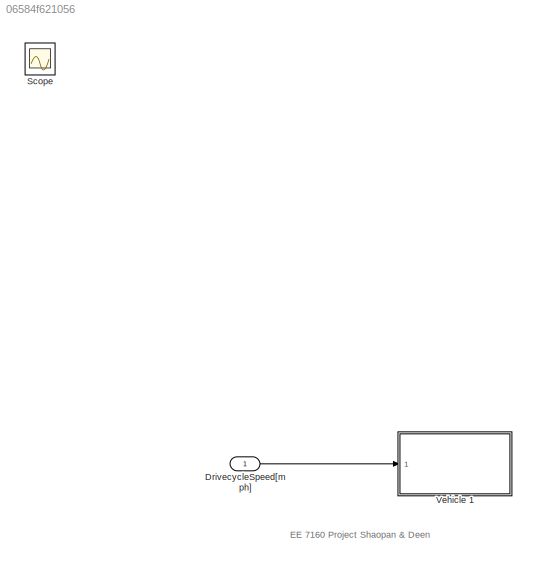
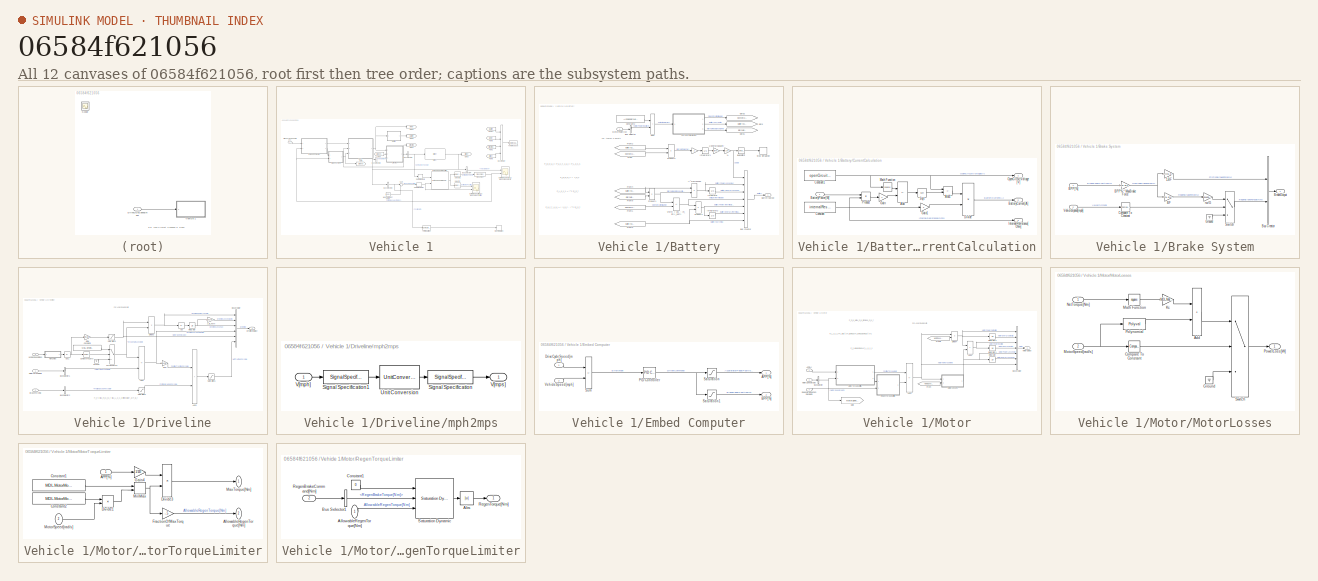
[diagram: thumbnail index - all 12 canvases of the model, root first then tree order]
MODEL slx_06584f621056
KIND model
CONFIG AbsTol = auto
CONFIG EnableMultiTasking = on
CONFIG FixedStep = .1
CONFIG MaxStep = auto
CONFIG MinStep = auto
CONFIG PostLoadFcn = addpath('ImagesBEV')\n\nBEVDir = pwd;\n\ncd ..\;\nSimulinkDir = pwd;\naddpath(SimulinkDir);\n\ncd(BEVDir);
CONFIG RelTol = 1e-3
CONFIG SampleTimeConstraint = Unconstrained
CONFIG Solver = ode4
CONFIG SolverName = ode4
CONFIG StartTime = 0.0
CONFIG StopFcn = MotorNetTorque = results.Motor.MotorNetTorque_Nm_;\nSOC = results.Battery.SOC___;\nBatteryPowerAtTerminals = results.Battery.BatteryPowerAtTerminals_W_;\nVehicleSpeed = results.Glider.Velocity_mph_;\n\n% figure\n% scatter(VehicleSpeed.get.Data(:),MotorNetTorque.get.Data(:),'.')\n% grid on\n% box on\n% title('Motor Torque vs. Vehicle Speed')\n% xlabel('Vehicle Speed, V (mph)')\n% ylabel('Motor Torque, Tm (Nm)...<+404ch>
CONFIG StopTime = TimeUS06
WORKSPACE source: mxarray member
WORKSPACE AccessoryLoad = 600
WORKSPACE C_ref = 600
WORKSPACE DrCycles: object (value not decoded)
WORKSPACE K = 1.04716227018
WORKSPACE Kc_ref = 0.12
WORKSPACE Ki_ref = 0.01
WORKSPACE Kw_ref = 1.2e-05
WORKSPACE MDL: object (value not decoded)
WORKSPACE R = 5
WORKSPACE T_max = 500
WORKSPACE T_ref = 300
WORKSPACE TimeHWFET = 765
WORKSPACE TimeUDDS = 1372
WORKSPACE TimeUS06 = 596
WORKSPACE Ts = 0.1
WORKSPACE aeroDragCoeff = 0.38
WORKSPACE airDensity = 1.23
WORKSPACE energyCapacity = 12.6
WORKSPACE frontArea = 2.1
WORKSPACE gravity = 9.81
WORKSPACE inclinationAngle = 0
WORKSPACE inertialMassVeh = 2392
WORKSPACE initialSOC = 0.95
WORKSPACE internalResistance = 0.1
WORKSPACE massVeh = 2300
WORKSPACE openCircuitVoltage = 340
WORKSPACE rollingResistCoeff = 0.01
WORKSPACE w_max = 524
WORKSPACE w_ref = 834
WORKSPACE wheelRadius = 0.34
BLOCK [Inport] DrivecycleSpeed[mph]
BLOCK [Scope] Scope
  Floating = off
  IOType = viewer
  NumInputPorts = 1
  Ports = []
  ScopeSpecificationString = Simulink.scopes.TimeScopeBlockCfg('CurrentConfiguration', extmgr.ConfigurationSet(extmgr.Configuration('Core','General UI',true),extmgr.Configuration('Core','Source UI',true),extmgr.Configuration('Sources','WiredSimulink',true),extmgr.Configuration('Visuals','Time Domain',true,'SerializedDisplays',{struct('MinYLimReal','-10.07407','MaxYLimReal','90.44538','YLabelReal','','MinYLimMag','0.00000','Ma...<+1372ch>
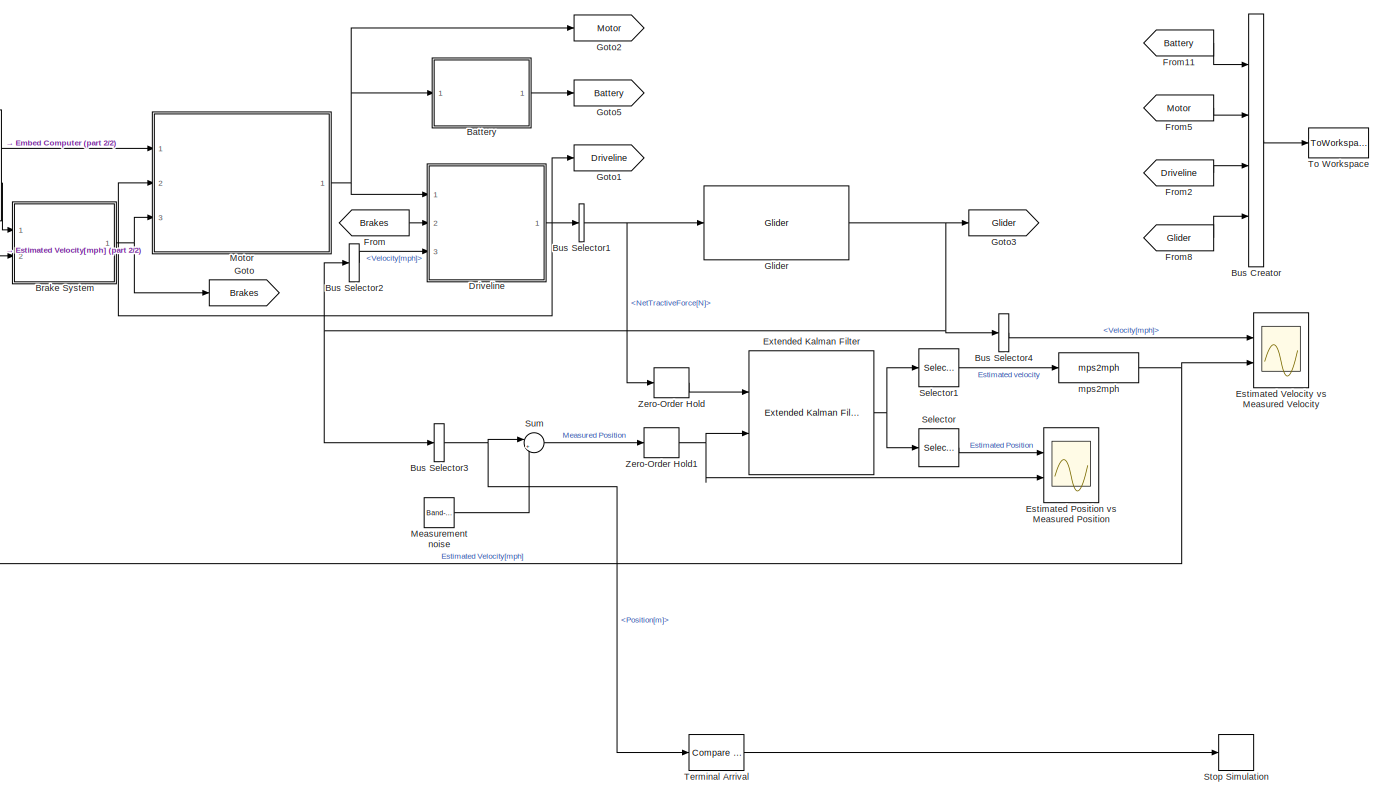
[diagram: Vehicle 1 - part 1/2, most of the canvas]
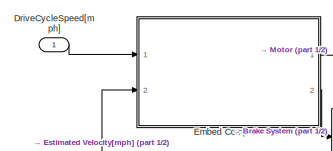
[diagram: Vehicle 1 - part 2/2, top left region]
BLOCK [SubSystem] Vehicle 1
  Ports = [1]
  RequestExecContextInheritance = off
BLOCK [Reference] Vehicle 1/ Measurement noise  REF=simulink/Sources/Band-Limited
White Noise
  Ports = [0, 1]
  SourceBlock = simulink/Sources/Band-Limited\nWhite Noise
  SourceProductBaseCode = SL
  SourceType = Band-Limited White Noise.
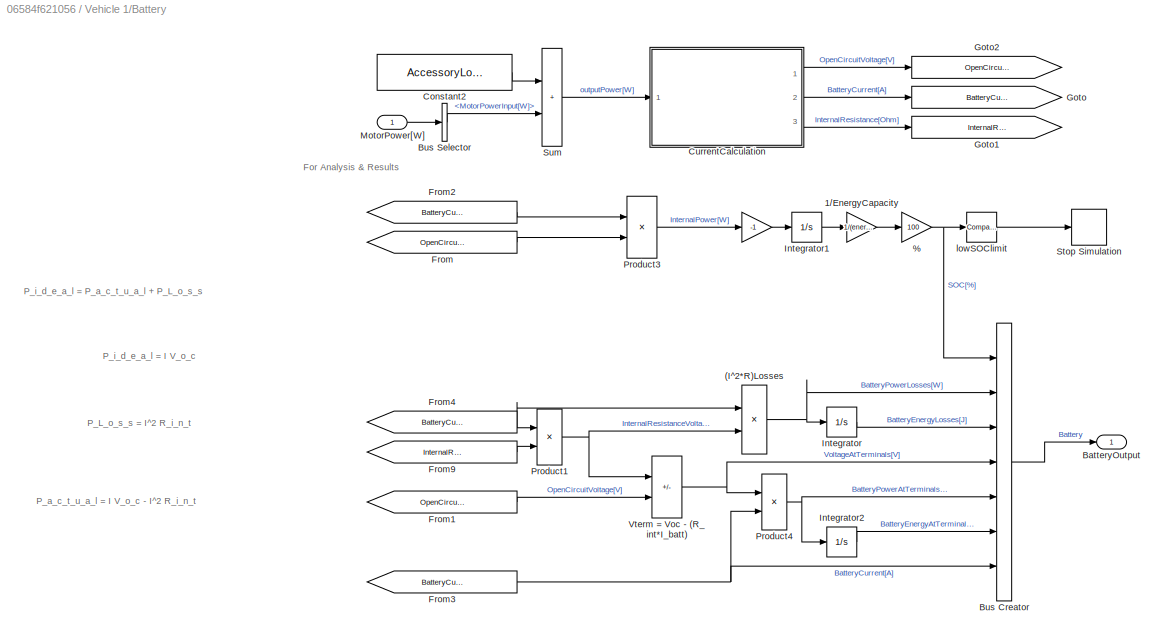
BLOCK [SubSystem] Vehicle 1/Battery
  Ports = [1, 1]
  RequestExecContextInheritance = off
BLOCK [Gain] Vehicle 1/Battery/ 
  Gain = -1
BLOCK [Gain] Vehicle 1/Battery/%
  Gain = 100
BLOCK [Product] Vehicle 1/Battery/(I^2*R)Losses
  NameLocation = top
  Ports = [2, 1]
  RndMeth = Zero
BLOCK [Gain] Vehicle 1/Battery/1//EnergyCapacity
  Gain = 1/(energyCapacity*3600*1000)
BLOCK [Outport] Vehicle 1/Battery/BatteryOutput
  VectorParamsAs1DForOutWhenUnconnected = off
BLOCK [BusCreator] Vehicle 1/Battery/Bus Creator
  DisplayOption = bar
  InheritFromInputs = on
  Inputs = 7
  Ports = [7, 1]
BLOCK [BusSelector] Vehicle 1/Battery/Bus Selector
  OutputSignals = MotorPowerInput[W]
  Ports = [1, 1]
BLOCK [Constant] Vehicle 1/Battery/Constant2
  Value = AccessoryLoad
BLOCK [SubSystem] Vehicle 1/Battery/CurrentCalculation
  Ports = [1, 3]
  RequestExecContextInheritance = off
BLOCK [Sum] Vehicle 1/Battery/CurrentCalculation/Add
  IconShape = rectangular
  Inputs = +-
  Ports = [2, 1]
BLOCK [Sum] Vehicle 1/Battery/CurrentCalculation/Add1
  IconShape = rectangular
  Inputs = +-
  Ports = [2, 1]
BLOCK [Outport] Vehicle 1/Battery/CurrentCalculation/BatteryCurrent[A]
  Port = 2
  VectorParamsAs1DForOutWhenUnconnected = off
BLOCK [Inport] Vehicle 1/Battery/CurrentCalculation/BatteryPower[W]
BLOCK [Constant] Vehicle 1/Battery/CurrentCalculation/Constant
  Value = internalResistance
BLOCK [Constant] Vehicle 1/Battery/CurrentCalculation/Constant1
  Value = openCircuitVoltage
BLOCK [Product] Vehicle 1/Battery/CurrentCalculation/Divide
  Inputs = */
  Ports = [2, 1]
BLOCK [Gain] Vehicle 1/Battery/CurrentCalculation/Gain
  Gain = 4
BLOCK [Gain] Vehicle 1/Battery/CurrentCalculation/Gain1
  Gain = 2
BLOCK [Outport] Vehicle 1/Battery/CurrentCalculation/InternalResistance[Ohm]
  Port = 3
  VectorParamsAs1DForOutWhenUnconnected = off
BLOCK [Math] Vehicle 1/Battery/CurrentCalculation/Math Function
  Operator = square
  Ports = [1, 1]
  SignedPower = on
BLOCK [Outport] Vehicle 1/Battery/CurrentCalculation/OpenCircuitVoltage[V]
  VectorParamsAs1DForOutWhenUnconnected = off
BLOCK [Product] Vehicle 1/Battery/CurrentCalculation/Product
  Ports = [2, 1]
  RndMeth = Zero
BLOCK [Sqrt] Vehicle 1/Battery/CurrentCalculation/Sqrt
BLOCK [From] Vehicle 1/Battery/From
  GotoTag = OpenCircuitVoltage_V
BLOCK [From] Vehicle 1/Battery/From1
  GotoTag = OpenCircuitVoltage_V
BLOCK [From] Vehicle 1/Battery/From2
  GotoTag = BatteryCurrent_A
BLOCK [From] Vehicle 1/Battery/From3
  GotoTag = BatteryCurrent_A
BLOCK [From] Vehicle 1/Battery/From4
  GotoTag = BatteryCurrent_A
BLOCK [From] Vehicle 1/Battery/From9
  GotoTag = InternalResistance_Ohm
BLOCK [Goto] Vehicle 1/Battery/Goto
  GotoTag = BatteryCurrent_A
BLOCK [Goto] Vehicle 1/Battery/Goto1
  GotoTag = InternalResistance_Ohm
BLOCK [Goto] Vehicle 1/Battery/Goto2
  GotoTag = OpenCircuitVoltage_V
BLOCK [Integrator] Vehicle 1/Battery/Integrator
  Ports = [1, 1]
  ZeroCross = off
BLOCK [Integrator] Vehicle 1/Battery/Integrator1
  InitialCondition = energyCapacity*3600*1000*initialSOC
  Ports = [1, 1]
  ZeroCross = off
BLOCK [Integrator] Vehicle 1/Battery/Integrator2
  Ports = [1, 1]
BLOCK [Inport] Vehicle 1/Battery/MotorPower[W]
BLOCK [Product] Vehicle 1/Battery/Product1
  Ports = [2, 1]
  RndMeth = Zero
BLOCK [Product] Vehicle 1/Battery/Product3
  Ports = [2, 1]
  RndMeth = Zero
BLOCK [Product] Vehicle 1/Battery/Product4
  Ports = [2, 1]
  RndMeth = Zero
BLOCK [Stop] Vehicle 1/Battery/Stop Simulation
BLOCK [Sum] Vehicle 1/Battery/Sum
  IconShape = rectangular
  Ports = [2, 1]
BLOCK [Sum] Vehicle 1/Battery/Vterm = Voc - (R_int*I_batt)
  IconShape = rectangular
  Inputs = -+
  Ports = [2, 1]
BLOCK [Reference] Vehicle 1/Battery/lowSOClimit  REF=simulink/Logic and Bit
Operations/Compare
To Constant
  Ports = [1, 1]
  SourceBlock = simulink/Logic and Bit\nOperations/Compare\nTo Constant
  SourceProductBaseCode = SL
  SourceType = Compare To Constant
BLOCK [SubSystem] Vehicle 1/Brake System
  Ports = [2, 1]
  RequestExecContextInheritance = off
BLOCK [Gain] Vehicle 1/Brake System/1-BF
  Gain = 1-MDL.BrakeSys.RegenFraction
BLOCK [Gain] Vehicle 1/Brake System/BF
  Gain = MDL.BrakeSys.RegenFraction
BLOCK [Gain] Vehicle 1/Brake System/BPP% * MaxBrakeForce
  Gain = MDL.BrakeSys.MaxBrakeForce/100
BLOCK [Inport] Vehicle 1/Brake System/BPP[%]
BLOCK [Outport] Vehicle 1/Brake System/BrakeOutput
  VectorParamsAs1DForOutWhenUnconnected = off
BLOCK [BusCreator] Vehicle 1/Brake System/Bus Creator
  DisplayOption = bar
  InheritFromInputs = on
  Inputs = 2
  Ports = [2, 1]
BLOCK [Reference] Vehicle 1/Brake System/Compare To Constant  REF=simulink/Logic and Bit
Operations/Compare
To Constant
  Ports = [1, 1]
  SourceBlock = simulink/Logic and Bit\nOperations/Compare\nTo Constant
  SourceProductBaseCode = SL
  SourceType = Compare To Constant
BLOCK [Ground] Vehicle 1/Brake System/Ground
BLOCK [Switch] Vehicle 1/Brake System/Switch
  Criteria = u2 ~= 0
  InputSameDT = off
  SaturateOnIntegerOverflow = off
BLOCK [Inport] Vehicle 1/Brake System/VehicleSpeed[mph]
  Port = 2
BLOCK [Gain] Vehicle 1/Brake System/rw//G
  Gain = wheelRadius/MDL.DrivelineModel.G
BLOCK [BusCreator] Vehicle 1/Bus Creator
  DisplayOption = bar
  InheritFromInputs = on
  Inputs = 4
  Ports = [4, 1]
BLOCK [BusSelector] Vehicle 1/Bus Selector1
  OutputSignals = NetTractiveForce[N]
  Ports = [1, 1]
BLOCK [BusSelector] Vehicle 1/Bus Selector2
  OutputSignals = Velocity[mph]
  Ports = [1, 1]
BLOCK [BusSelector] Vehicle 1/Bus Selector3
  OutputSignals = Position[m]
  Ports = [1, 1]
BLOCK [BusSelector] Vehicle 1/Bus Selector4
  OutputSignals = Velocity[mph]
  Ports = [1, 1]
BLOCK [Inport] Vehicle 1/DriveCycleSpeed[mph]
BLOCK [SubSystem] Vehicle 1/Driveline
  Ports = [3, 1]
  RequestExecContextInheritance = off
BLOCK [Abs] Vehicle 1/Driveline/Abs
  SaturateOnIntegerOverflow = off
  ZeroCross = off
BLOCK [Abs] Vehicle 1/Driveline/Abs1
  SaturateOnIntegerOverflow = off
  ZeroCross = off
BLOCK [Sum] Vehicle 1/Driveline/Add1
  IconShape = rectangular
  Inputs = -+
  Ports = [2, 1]
BLOCK [Sum] Vehicle 1/Driveline/Add3
  IconShape = rectangular
  Ports = [2, 1]
BLOCK [Inport] Vehicle 1/Driveline/BrakeForce[N]
  Port = 2
BLOCK [BusCreator] Vehicle 1/Driveline/Bus Creator
  DisplayOption = bar
  InheritFromInputs = on
  Inputs = 6
  Ports = [6, 1]
BLOCK [BusSelector] Vehicle 1/Driveline/Bus Selector1
  OutputSignals = MotorNetTorque[Nm]
  Ports = [1, 1]
BLOCK [BusSelector] Vehicle 1/Driveline/Bus Selector2
  OutputSignals = FrictionBrakeForce[N]
  Ports = [1, 1]
BLOCK [Reference] Vehicle 1/Driveline/Compare To Zero  REF=simulink/Logic and Bit
Operations/Compare
To Zero
  Ports = [1, 1]
  SourceBlock = simulink/Logic and Bit\nOperations/Compare\nTo Zero
  SourceProductBaseCode = SL
  SourceType = Compare To Zero
BLOCK [Constant] Vehicle 1/Driveline/Constant1
  Value = MDL.DrivelineModel.Spinloss
BLOCK [Product] Vehicle 1/Driveline/Divide3
  Inputs = **
  Ports = [2, 1]
BLOCK [Outport] Vehicle 1/Driveline/DrivelineOutput
  VectorParamsAs1DForOutWhenUnconnected = off
BLOCK [Switch] Vehicle 1/Driveline/ForNonZeroV
  Criteria = u2 ~= 0
  InputSameDT = off
  SaturateOnIntegerOverflow = off
  ZeroCross = off
BLOCK [Gain] Vehicle 1/Driveline/G//Rw
  Gain = MDL.DrivelineModel.G/wheelRadius
BLOCK [Gain] Vehicle 1/Driveline/G//rw
  Gain = MDL.DrivelineModel.G/wheelRadius
BLOCK [Ground] Vehicle 1/Driveline/Ground
BLOCK [Integrator] Vehicle 1/Driveline/Integrator
  Ports = [1, 1]
  ZeroCross = off
BLOCK [Gain] Vehicle 1/Driveline/J_to_kWh
  Gain = .000278/1000
BLOCK [Inport] Vehicle 1/Driveline/MotorTorque[Nm]
BLOCK [Saturate] Vehicle 1/Driveline/Saturation1
  LowerLimit = -10000
  UpperLimit = 5000
  ZeroCross = off
BLOCK [Saturate] Vehicle 1/Driveline/Saturation2
  LowerLimit = -10000
  UpperLimit = 0
  ZeroCross = off
BLOCK [Saturate] Vehicle 1/Driveline/Saturation3
  LowerLimit = 0.00001
  UpperLimit = inf
  ZeroCross = off
BLOCK [Inport] Vehicle 1/Driveline/VehicleSpeed[mph]
  Port = 3
BLOCK [SubSystem] Vehicle 1/Driveline/mph2mps
  Ports = [1, 1]
  RequestExecContextInheritance = off
BLOCK [SignalSpecification] Vehicle 1/Driveline/mph2mps/Signal Specification
  Unit = m/s
BLOCK [SignalSpecification] Vehicle 1/Driveline/mph2mps/Signal Specification1
  Unit = mile/hr
BLOCK [UnitConversion] Vehicle 1/Driveline/mph2mps/Unit Conversion
BLOCK [Inport] Vehicle 1/Driveline/mph2mps/V[mph]
BLOCK [Outport] Vehicle 1/Driveline/mph2mps/V[mps]
  VectorParamsAs1DForOutWhenUnconnected = off
BLOCK [SubSystem] Vehicle 1/Embed Computer
  AncestorBlock = Driver_Glider_Library/Driver
  Ports = [2, 2]
  RequestExecContextInheritance = off
BLOCK [Outport] Vehicle 1/Embed Computer/APP[%]
  VectorParamsAs1DForOutWhenUnconnected = off
BLOCK [Outport] Vehicle 1/Embed Computer/BPP[%]
  Port = 2
  VectorParamsAs1DForOutWhenUnconnected = off
BLOCK [Inport] Vehicle 1/Embed Computer/DriveCycleSpeed[mph]
BLOCK [Reference] Vehicle 1/Embed Computer/PID Controller  REF=simulink/Continuous/PID Controller
  Ports = [1, 1]
  SourceBlock = simulink/Continuous/PID Controller
  SourceProductBaseCode = SL
  SourceType = PID 1dof
BLOCK [Saturate] Vehicle 1/Embed Computer/Saturation
  LowerLimit = 0
  UpperLimit = 100
  ZeroCross = off
BLOCK [Saturate] Vehicle 1/Embed Computer/Saturation1
  LowerLimit = -100
  UpperLimit = 0
  ZeroCross = off
BLOCK [Sum] Vehicle 1/Embed Computer/Sum
  IconShape = rectangular
  Inputs = +-
  Ports = [2, 1]
BLOCK [Inport] Vehicle 1/Embed Computer/VehicleSpeed[mph]
  Port = 2
BLOCK [Scope] Vehicle 1/Estimated Position vs Measured Position
  Floating = off
  NumInputPorts = 2
  Ports = [2]
  ScopeSpecificationString = Simulink.scopes.TimeScopeBlockCfg('CurrentConfiguration', extmgr.ConfigurationSet(extmgr.Configuration('Core','General UI',true,'FigureColor',[0 0 0]),extmgr.Configuration('Core','Source UI',true),extmgr.Configuration('Sources','WiredSimulink',true,'DataLoggingVariableName','ScopeData1'),extmgr.Configuration('Visuals','Time Domain',true,'SerializedDisplays',{struct('MinYLimReal','-1605.65993','Max...<+1684ch>
BLOCK [Scope] Vehicle 1/Estimated Velocity vs Measured Velocity
  Floating = off
  NumInputPorts = 2
  Ports = [2]
  ScopeSpecificationString = Simulink.scopes.TimeScopeBlockCfg('CurrentConfiguration', extmgr.ConfigurationSet(extmgr.Configuration('Core','General UI',true,'FigureColor',[0 0 0]),extmgr.Configuration('Core','Source UI',true),extmgr.Configuration('Sources','WiredSimulink',true,'DataLoggingVariableName','ScopeData3'),extmgr.Configuration('Visuals','Time Domain',true,'SerializedDisplays',{struct('MinYLimReal','-100','MaxYLimRea...<+1699ch>
BLOCK [Reference] Vehicle 1/Extended Kalman Filter  REF=sharedTrackingLibrary/Extended Kalman Filter
  Ports = [2, 1]
  SourceBlock = sharedTrackingLibrary/Extended Kalman Filter
  SourceProductBaseCode = CT,DR,TF,ID,NV,AR,RO,VE
  SourceType = Extended Kalman Filter
BLOCK [From] Vehicle 1/From
  GotoTag = Brakes
BLOCK [From] Vehicle 1/From11
  GotoTag = Battery
BLOCK [From] Vehicle 1/From2
  GotoTag = Driveline
BLOCK [From] Vehicle 1/From5
  GotoTag = Motor
BLOCK [From] Vehicle 1/From8
  GotoTag = Glider
BLOCK [Reference] Vehicle 1/Glider  REF=Driver_Glider_Library/Glider
  Ports = [1, 1]
  SourceBlock = Driver_Glider_Library/Glider
BLOCK [Goto] Vehicle 1/Goto
  GotoTag = Brakes
BLOCK [Goto] Vehicle 1/Goto1
  GotoTag = Driveline
BLOCK [Goto] Vehicle 1/Goto2
  GotoTag = Motor
BLOCK [Goto] Vehicle 1/Goto3
  GotoTag = Glider
BLOCK [Goto] Vehicle 1/Goto5
  GotoTag = Battery
BLOCK [SubSystem] Vehicle 1/Motor
  Ports = [3, 1]
  RequestExecContextInheritance = off
BLOCK [Inport] Vehicle 1/Motor/APP[%]
BLOCK [Sum] Vehicle 1/Motor/Add2
  IconShape = rectangular
  Inputs = +-
  Ports = [2, 1]
BLOCK [Sum] Vehicle 1/Motor/Add3
  IconShape = rectangular
  Ports = [2, 1]
BLOCK [BusCreator] Vehicle 1/Motor/Bus Creator
  DisplayOption = bar
  InheritFromInputs = on
  Inputs = 7
  Ports = [7, 1]
BLOCK [BusSelector] Vehicle 1/Motor/Bus Selector
  OutputSignals = MotorSpeed[rad/s]
  Ports = [1, 1]
BLOCK [Product] Vehicle 1/Motor/Divide4
  Inputs = **
  Ports = [2, 1]
BLOCK [From] Vehicle 1/Motor/From
  GotoTag = MotorSpeed_radps
BLOCK [From] Vehicle 1/Motor/From1
  GotoTag = MotorSpeed_radps
BLOCK [Goto] Vehicle 1/Motor/Goto
  GotoTag = MotorSpeed_radps
BLOCK [Integrator] Vehicle 1/Motor/Integrator
  Ports = [1, 1]
  ZeroCross = off
BLOCK [Integrator] Vehicle 1/Motor/Integrator1
  Ports = [1, 1]
  ZeroCross = off
BLOCK [Integrator] Vehicle 1/Motor/Integrator2
  Ports = [1, 1]
  ZeroCross = off
BLOCK [SubSystem] Vehicle 1/Motor/MotorLosses
  Ports = [2, 1]
  RequestExecContextInheritance = off
BLOCK [Sum] Vehicle 1/Motor/MotorLosses/Add
  IconShape = rectangular
  Ports = [2, 1]
BLOCK [Reference] Vehicle 1/Motor/MotorLosses/Compare To Constant  REF=simulink/Logic and Bit
Operations/Compare
To Constant
  Ports = [1, 1]
  SourceBlock = simulink/Logic and Bit\nOperations/Compare\nTo Constant
  SourceProductBaseCode = SL
  SourceType = Compare To Constant
BLOCK [Ground] Vehicle 1/Motor/MotorLosses/Ground
BLOCK [Gain] Vehicle 1/Motor/MotorLosses/Kc
  Gain = MDL.MotorModel.kc
BLOCK [Math] Vehicle 1/Motor/MotorLosses/Math Function
  Operator = square
  Ports = [1, 1]
  SignedPower = on
BLOCK [Inport] Vehicle 1/Motor/MotorLosses/MotorSpeed[rad//s]
  Port = 2
BLOCK [Inport] Vehicle 1/Motor/MotorLosses/NetTorque[Nm]
BLOCK [Polyval] Vehicle 1/Motor/MotorLosses/Polynomial
  Coefs = [MDL.MotorModel.kw , 0 ,MDL.MotorModel.ki, MDL.MotorModel.C]
BLOCK [Outport] Vehicle 1/Motor/MotorLosses/PowerLoss[W]
  VectorParamsAs1DForOutWhenUnconnected = off
BLOCK [Switch] Vehicle 1/Motor/MotorLosses/Switch
  Criteria = u2 ~= 0
  InputSameDT = off
  SaturateOnIntegerOverflow = off
  ZeroCross = off
BLOCK [Outport] Vehicle 1/Motor/MotorOutput
  VectorParamsAs1DForOutWhenUnconnected = off
BLOCK [Inport] Vehicle 1/Motor/MotorSpeed[rad//s]
  Port = 2
BLOCK [SubSystem] Vehicle 1/Motor/MotorTorqueLimiter
  Ports = [2, 2]
  RequestExecContextInheritance = off
BLOCK [Inport] Vehicle 1/Motor/MotorTorqueLimiter/APP[%]
BLOCK [Outport] Vehicle 1/Motor/MotorTorqueLimiter/AllowableRegenTorque[Nm]
  Port = 2
  VectorParamsAs1DForOutWhenUnconnected = off
BLOCK [Constant] Vehicle 1/Motor/MotorTorqueLimiter/Constant1
  Value = MDL.MotorModel.MaxTrqOut
BLOCK [Constant] Vehicle 1/Motor/MotorTorqueLimiter/Constant2
  Value = MDL.MotorModel.MaxPwrOut
BLOCK [Product] Vehicle 1/Motor/MotorTorqueLimiter/Divide1
  Inputs = */
  Ports = [2, 1]
BLOCK [Product] Vehicle 1/Motor/MotorTorqueLimiter/Divide3
  Inputs = **
  Ports = [2, 1]
BLOCK [Gain] Vehicle 1/Motor/MotorTorqueLimiter/FractionOfMaxTorque
  Gain = -.5
BLOCK [Gain] Vehicle 1/Motor/MotorTorqueLimiter/Gain4
  Gain = 1/100
BLOCK [Outport] Vehicle 1/Motor/MotorTorqueLimiter/MaxTorque[Nm]
  VectorParamsAs1DForOutWhenUnconnected = off
BLOCK [MinMax] Vehicle 1/Motor/MotorTorqueLimiter/MinMax
  Inputs = 2
  Ports = [2, 1]
BLOCK [Inport] Vehicle 1/Motor/MotorTorqueLimiter/MotorSpeed[rad//s]
  Port = 2
BLOCK [Inport] Vehicle 1/Motor/RegenBrakingCommand[Nm]
  Port = 3
BLOCK [SubSystem] Vehicle 1/Motor/RegenTorqueLimiter
  Ports = [2, 1]
  RequestExecContextInheritance = off
BLOCK [Abs] Vehicle 1/Motor/RegenTorqueLimiter/Abs
  SaturateOnIntegerOverflow = off
BLOCK [Inport] Vehicle 1/Motor/RegenTorqueLimiter/AllowableRegenTorque[Nm]
BLOCK [BusSelector] Vehicle 1/Motor/RegenTorqueLimiter/Bus Selector1
  OutputSignals = RegenBrakeTorque[Nm]
  Ports = [1, 1]
BLOCK [Constant] Vehicle 1/Motor/RegenTorqueLimiter/Constant1
  Value = 0
BLOCK [Inport] Vehicle 1/Motor/RegenTorqueLimiter/RegenBrakeCommand[Nm]
  Port = 2
BLOCK [Outport] Vehicle 1/Motor/RegenTorqueLimiter/RegenTorque[Nm]
  VectorParamsAs1DForOutWhenUnconnected = off
BLOCK [Reference] Vehicle 1/Motor/RegenTorqueLimiter/Saturation Dynamic  REF=simulink/Discontinuities/Saturation
Dynamic
  Ports = [3, 1]
  SourceBlock = simulink/Discontinuities/Saturation\nDynamic
  SourceProductBaseCode = SL
  SourceType = Saturation Dynamic
BLOCK [Selector] Vehicle 1/Selector
  IndexOptions = Index vector (dialog)
  Indices = 1
  InputPortWidth = 2
  OutputSizes = 1
  Ports = [1, 1]
BLOCK [Selector] Vehicle 1/Selector1
  IndexOptions = Index vector (dialog)
  Indices = 2
  InputPortWidth = 2
  OutputSizes = 1
  Ports = [1, 1]
BLOCK [Stop] Vehicle 1/Stop Simulation
  Commented = on
BLOCK [Sum] Vehicle 1/Sum
  Inputs = |++
  Ports = [2, 1]
BLOCK [Reference] Vehicle 1/Terminal Arrival  REF=simulink/Logic and Bit
Operations/Compare
To Constant
  Commented = on
  Ports = [1, 1]
  SourceBlock = simulink/Logic and Bit\nOperations/Compare\nTo Constant
  SourceProductBaseCode = SL
  SourceType = Compare To Constant
BLOCK [ToWorkspace] Vehicle 1/To Workspace
  FixptAsFi = on
  MaxDataPoints = inf
  Ports = [1]
  SampleTime = -1
  Save2DSignal = 2-D array (concatenate along first dimension)
  SaveFormat = Timeseries
  VariableName = results
BLOCK [ZeroOrderHold] Vehicle 1/Zero-Order Hold
  SampleTime = Ts
BLOCK [ZeroOrderHold] Vehicle 1/Zero-Order Hold1
  SampleTime = Ts
BLOCK [Reference] Vehicle 1/mps2mph  REF=Driver_Glider_Library/Glider/mps2mph
  Ports = [1, 1]
  SourceBlock = Driver_Glider_Library/Glider/mps2mph
  SourceType = SubSystem
ANNOTATION (root): EE 7160 Project Shaopan & Deen
ANNOTATION Vehicle 1/Battery: P_L_o_s_s = I^2 R_i_n_t
ANNOTATION Vehicle 1/Battery: For Analysis & Results
ANNOTATION Vehicle 1/Battery: P_a_c_t_u_a_l = I V_o_c - I^2 R_i_n_t
ANNOTATION Vehicle 1/Battery: P_i_d_e_a_l = I V_o_c
ANNOTATION Vehicle 1/Battery: P_i_d_e_a_l = P_a_c_t_u_a_l + P_L_o_s_s
ANNOTATION Vehicle 1/Driveline: F_t_r = (\tau_m_o_t_o_r - \tau_L_o_s_s) \times G \div r_w - F_B_r
ANNOTATION Vehicle 1/Driveline: For Analysis & Results
ANNOTATION Vehicle 1/Motor: For Analysis & Results
ANNOTATION Vehicle 1/Motor: P_L_o_s_s = k_c \tau ^2 + k_i \omega + k_\omega \omega ^3 + C
ANNOTATION Vehicle 1/Motor: P_i_n = \tau \omega + P_L_o_s_s
ANNOTATION Vehicle 1/Motor: P_m_o_t = \tau_m_o_t \omega_m_o_t
LINE DrivecycleSpeed[mph]:1 -> Vehicle 1:1
LINE Vehicle 1/ Measurement noise:1 -> Vehicle 1/Sum:2
LINE Vehicle 1/Battery/ :1 -> Vehicle 1/Battery/Integrator1:1
NET Vehicle 1/Battery/%:1 -> Vehicle 1/Battery/Bus Creator:1, Vehicle 1/Battery/lowSOClimit:1
NET Vehicle 1/Battery/(I^2*R)Losses:1 -> Vehicle 1/Battery/Bus Creator:2, Vehicle 1/Battery/Integrator:1
LINE Vehicle 1/Battery/1//EnergyCapacity:1 -> Vehicle 1/Battery/%:1
LINE Vehicle 1/Battery/Bus Creator:1 -> Vehicle 1/Battery/BatteryOutput:1
LINE Vehicle 1/Battery/Bus Selector:1 -> Vehicle 1/Battery/Sum:2
LINE Vehicle 1/Battery/Constant2:1 -> Vehicle 1/Battery/Sum:1
LINE Vehicle 1/Battery/CurrentCalculation/Add1:1 -> Vehicle 1/Battery/CurrentCalculation/Divide:1
LINE Vehicle 1/Battery/CurrentCalculation/Add:1 -> Vehicle 1/Battery/CurrentCalculation/Sqrt:1
LINE Vehicle 1/Battery/CurrentCalculation/BatteryPower[W]:1 -> Vehicle 1/Battery/CurrentCalculation/Product:1
NET Vehicle 1/Battery/CurrentCalculation/Constant1:1 -> Vehicle 1/Battery/CurrentCalculation/Add1:1, Vehicle 1/Battery/CurrentCalculation/Math Function:1, Vehicle 1/Battery/CurrentCalculation/OpenCircuitVoltage[V]:1
NET Vehicle 1/Battery/CurrentCalculation/Constant:1 -> Vehicle 1/Battery/CurrentCalculation/Gain1:1, Vehicle 1/Battery/CurrentCalculation/InternalResistance[Ohm]:1, Vehicle 1/Battery/CurrentCalculation/Product:2
LINE Vehicle 1/Battery/CurrentCalculation/Divide:1 -> Vehicle 1/Battery/CurrentCalculation/BatteryCurrent[A]:1
LINE Vehicle 1/Battery/CurrentCalculation/Gain1:1 -> Vehicle 1/Battery/CurrentCalculation/Divide:2
LINE Vehicle 1/Battery/CurrentCalculation/Gain:1 -> Vehicle 1/Battery/CurrentCalculation/Add:2
LINE Vehicle 1/Battery/CurrentCalculation/Math Function:1 -> Vehicle 1/Battery/CurrentCalculation/Add:1
LINE Vehicle 1/Battery/CurrentCalculation/Product:1 -> Vehicle 1/Battery/CurrentCalculation/Gain:1
LINE Vehicle 1/Battery/CurrentCalculation/Sqrt:1 -> Vehicle 1/Battery/CurrentCalculation/Add1:2
LINE Vehicle 1/Battery/CurrentCalculation:1 -> Vehicle 1/Battery/Goto2:1
LINE Vehicle 1/Battery/CurrentCalculation:2 -> Vehicle 1/Battery/Goto:1
LINE Vehicle 1/Battery/CurrentCalculation:3 -> Vehicle 1/Battery/Goto1:1
LINE Vehicle 1/Battery/From1:1 -> Vehicle 1/Battery/Vterm = Voc - (R_int*I_batt):2
LINE Vehicle 1/Battery/From2:1 -> Vehicle 1/Battery/Product3:1
NET Vehicle 1/Battery/From3:1 -> Vehicle 1/Battery/Bus Creator:7, Vehicle 1/Battery/Product4:2
NET Vehicle 1/Battery/From4:1 -> Vehicle 1/Battery/(I^2*R)Losses:1, Vehicle 1/Battery/Product1:1
LINE Vehicle 1/Battery/From9:1 -> Vehicle 1/Battery/Product1:2
LINE Vehicle 1/Battery/From:1 -> Vehicle 1/Battery/Product3:2
LINE Vehicle 1/Battery/Integrator1:1 -> Vehicle 1/Battery/1//EnergyCapacity:1
LINE Vehicle 1/Battery/Integrator2:1 -> Vehicle 1/Battery/Bus Creator:6
LINE Vehicle 1/Battery/Integrator:1 -> Vehicle 1/Battery/Bus Creator:3
LINE Vehicle 1/Battery/MotorPower[W]:1 -> Vehicle 1/Battery/Bus Selector:1
NET Vehicle 1/Battery/Product1:1 -> Vehicle 1/Battery/(I^2*R)Losses:2, Vehicle 1/Battery/Vterm = Voc - (R_int*I_batt):1
LINE Vehicle 1/Battery/Product3:1 -> Vehicle 1/Battery/ :1
NET Vehicle 1/Battery/Product4:1 -> Vehicle 1/Battery/Bus Creator:5, Vehicle 1/Battery/Integrator2:1
LINE Vehicle 1/Battery/Sum:1 -> Vehicle 1/Battery/CurrentCalculation:1
NET Vehicle 1/Battery/Vterm = Voc - (R_int*I_batt):1 -> Vehicle 1/Battery/Bus Creator:4, Vehicle 1/Battery/Product4:1
LINE Vehicle 1/Battery/lowSOClimit:1 -> Vehicle 1/Battery/Stop Simulation:1
LINE Vehicle 1/Battery:1 -> Vehicle 1/Goto5:1
LINE Vehicle 1/Brake System/1-BF:1 -> Vehicle 1/Brake System/Bus Creator:1
LINE Vehicle 1/Brake System/BF:1 -> Vehicle 1/Brake System/rw//G:1
NET Vehicle 1/Brake System/BPP% * MaxBrakeForce:1 -> Vehicle 1/Brake System/1-BF:1, Vehicle 1/Brake System/BF:1
LINE Vehicle 1/Brake System/BPP[%]:1 -> Vehicle 1/Brake System/BPP% * MaxBrakeForce:1
LINE Vehicle 1/Brake System/Bus Creator:1 -> Vehicle 1/Brake System/BrakeOutput:1
LINE Vehicle 1/Brake System/Compare To Constant:1 -> Vehicle 1/Brake System/Switch:2
LINE Vehicle 1/Brake System/Ground:1 -> Vehicle 1/Brake System/Switch:3
LINE Vehicle 1/Brake System/Switch:1 -> Vehicle 1/Brake System/Bus Creator:2
LINE Vehicle 1/Brake System/VehicleSpeed[mph]:1 -> Vehicle 1/Brake System/Compare To Constant:1
LINE Vehicle 1/Brake System/rw//G:1 -> Vehicle 1/Brake System/Switch:1
NET Vehicle 1/Brake System:1 -> Vehicle 1/Goto:1, Vehicle 1/Motor:3
LINE Vehicle 1/Bus Creator:1 -> Vehicle 1/To Workspace:1
NET Vehicle 1/Bus Selector1:1 -> Vehicle 1/Glider:1, Vehicle 1/Zero-Order Hold:1
LINE Vehicle 1/Bus Selector2:1 -> Vehicle 1/Driveline:3
NET Vehicle 1/Bus Selector3:1 -> Vehicle 1/Sum:1, Vehicle 1/Terminal Arrival:1
LINE Vehicle 1/Bus Selector4:1 -> Vehicle 1/Estimated Velocity vs Measured Velocity:1
LINE Vehicle 1/DriveCycleSpeed[mph]:1 -> Vehicle 1/Embed Computer:1
NET Vehicle 1/Driveline/Abs1:1 -> Vehicle 1/Driveline/Compare To Zero:1, Vehicle 1/Driveline/G//Rw:1
LINE Vehicle 1/Driveline/Abs:1 -> Vehicle 1/Driveline/Integrator:1
NET Vehicle 1/Driveline/Add1:1 -> Vehicle 1/Driveline/Bus Creator:4, Vehicle 1/Driveline/G//rw:1
LINE Vehicle 1/Driveline/Add3:1 -> Vehicle 1/Driveline/Saturation1:1
LINE Vehicle 1/Driveline/BrakeForce[N]:1 -> Vehicle 1/Driveline/Bus Selector2:1
LINE Vehicle 1/Driveline/Bus Creator:1 -> Vehicle 1/Driveline/DrivelineOutput:1
LINE Vehicle 1/Driveline/Bus Selector1:1 -> Vehicle 1/Driveline/Add1:2
LINE Vehicle 1/Driveline/Bus Selector2:1 -> Vehicle 1/Driveline/Saturation2:1
LINE Vehicle 1/Driveline/Compare To Zero:1 -> Vehicle 1/Driveline/ForNonZeroV:2
LINE Vehicle 1/Driveline/Constant1:1 -> Vehicle 1/Driveline/ForNonZeroV:1
NET Vehicle 1/Driveline/Divide3:1 -> Vehicle 1/Driveline/Abs:1, Vehicle 1/Driveline/Bus Creator:1
NET Vehicle 1/Driveline/ForNonZeroV:1 -> Vehicle 1/Driveline/Add1:1, Vehicle 1/Driveline/Divide3:2
LINE Vehicle 1/Driveline/G//Rw:1 -> Vehicle 1/Driveline/Saturation3:1
LINE Vehicle 1/Driveline/G//rw:1 -> Vehicle 1/Driveline/Add3:1
LINE Vehicle 1/Driveline/Ground:1 -> Vehicle 1/Driveline/ForNonZeroV:3
NET Vehicle 1/Driveline/Integrator:1 -> Vehicle 1/Driveline/Bus Creator:3, Vehicle 1/Driveline/J_to_kWh:1
LINE Vehicle 1/Driveline/J_to_kWh:1 -> Vehicle 1/Driveline/Bus Creator:2
LINE Vehicle 1/Driveline/MotorTorque[Nm]:1 -> Vehicle 1/Driveline/Bus Selector1:1
LINE Vehicle 1/Driveline/Saturation1:1 -> Vehicle 1/Driveline/Bus Creator:6
LINE Vehicle 1/Driveline/Saturation2:1 -> Vehicle 1/Driveline/Add3:2
NET Vehicle 1/Driveline/Saturation3:1 -> Vehicle 1/Driveline/Bus Creator:5, Vehicle 1/Driveline/Divide3:1
LINE Vehicle 1/Driveline/VehicleSpeed[mph]:1 -> Vehicle 1/Driveline/mph2mps:1
LINE Vehicle 1/Driveline/mph2mps/Signal Specification1:1 -> Vehicle 1/Driveline/mph2mps/Unit Conversion:1
LINE Vehicle 1/Driveline/mph2mps/Signal Specification:1 -> Vehicle 1/Driveline/mph2mps/V[mps]:1
LINE Vehicle 1/Driveline/mph2mps/Unit Conversion:1 -> Vehicle 1/Driveline/mph2mps/Signal Specification:1
LINE Vehicle 1/Driveline/mph2mps/V[mph]:1 -> Vehicle 1/Driveline/mph2mps/Signal Specification1:1
LINE Vehicle 1/Driveline/mph2mps:1 -> Vehicle 1/Driveline/Abs1:1
NET Vehicle 1/Driveline:1 -> Vehicle 1/Bus Selector1:1, Vehicle 1/Goto1:1, Vehicle 1/Motor:2
LINE Vehicle 1/Embed Computer:1 -> Vehicle 1/Motor:1
LINE Vehicle 1/Embed Computer:2 -> Vehicle 1/Brake System:1
NET Vehicle 1/Extended Kalman Filter:1 -> Vehicle 1/Selector1:1, Vehicle 1/Selector:1
LINE Vehicle 1/From11:1 -> Vehicle 1/Bus Creator:1
LINE Vehicle 1/From2:1 -> Vehicle 1/Bus Creator:3
LINE Vehicle 1/From5:1 -> Vehicle 1/Bus Creator:2
LINE Vehicle 1/From8:1 -> Vehicle 1/Bus Creator:4
LINE Vehicle 1/From:1 -> Vehicle 1/Driveline:2
NET Vehicle 1/Glider:1 -> Vehicle 1/Bus Selector2:1, Vehicle 1/Bus Selector3:1, Vehicle 1/Bus Selector4:1, Vehicle 1/Goto3:1
LINE Vehicle 1/Motor/APP[%]:1 -> Vehicle 1/Motor/MotorTorqueLimiter:1
NET Vehicle 1/Motor/Add2:1 -> Vehicle 1/Motor/Bus Creator:7, Vehicle 1/Motor/Divide4:1, Vehicle 1/Motor/MotorLosses:1
NET Vehicle 1/Motor/Add3:1 -> Vehicle 1/Motor/Bus Creator:3, Vehicle 1/Motor/Integrator1:1
LINE Vehicle 1/Motor/Bus Creator:1 -> Vehicle 1/Motor/MotorOutput:1
NET Vehicle 1/Motor/Bus Selector:1 -> Vehicle 1/Motor/Goto:1, Vehicle 1/Motor/MotorTorqueLimiter:2
NET Vehicle 1/Motor/Divide4:1 -> Vehicle 1/Motor/Add3:1, Vehicle 1/Motor/Bus Creator:1, Vehicle 1/Motor/Integrator2:1
LINE Vehicle 1/Motor/From1:1 -> Vehicle 1/Motor/Divide4:2
LINE Vehicle 1/Motor/From:1 -> Vehicle 1/Motor/MotorLosses:2
LINE Vehicle 1/Motor/Integrator1:1 -> Vehicle 1/Motor/Bus Creator:4
LINE Vehicle 1/Motor/Integrator2:1 -> Vehicle 1/Motor/Bus Creator:2
LINE Vehicle 1/Motor/Integrator:1 -> Vehicle 1/Motor/Bus Creator:6
LINE Vehicle 1/Motor/MotorLosses/Add:1 -> Vehicle 1/Motor/MotorLosses/Switch:1
LINE Vehicle 1/Motor/MotorLosses/Compare To Constant:1 -> Vehicle 1/Motor/MotorLosses/Switch:2
LINE Vehicle 1/Motor/MotorLosses/Ground:1 -> Vehicle 1/Motor/MotorLosses/Switch:3
LINE Vehicle 1/Motor/MotorLosses/Kc:1 -> Vehicle 1/Motor/MotorLosses/Add:1
LINE Vehicle 1/Motor/MotorLosses/Math Function:1 -> Vehicle 1/Motor/MotorLosses/Kc:1
NET Vehicle 1/Motor/MotorLosses/MotorSpeed[rad//s]:1 -> Vehicle 1/Motor/MotorLosses/Compare To Constant:1, Vehicle 1/Motor/MotorLosses/Polynomial:1
LINE Vehicle 1/Motor/MotorLosses/NetTorque[Nm]:1 -> Vehicle 1/Motor/MotorLosses/Math Function:1
LINE Vehicle 1/Motor/MotorLosses/Polynomial:1 -> Vehicle 1/Motor/MotorLosses/Add:2
LINE Vehicle 1/Motor/MotorLosses/Switch:1 -> Vehicle 1/Motor/MotorLosses/PowerLoss[W]:1
NET Vehicle 1/Motor/MotorLosses:1 -> Vehicle 1/Motor/Add3:2, Vehicle 1/Motor/Bus Creator:5, Vehicle 1/Motor/Integrator:1
LINE Vehicle 1/Motor/MotorSpeed[rad//s]:1 -> Vehicle 1/Motor/Bus Selector:1
LINE Vehicle 1/Motor/MotorTorqueLimiter/APP[%]:1 -> Vehicle 1/Motor/MotorTorqueLimiter/Gain4:1
LINE Vehicle 1/Motor/MotorTorqueLimiter/Constant1:1 -> Vehicle 1/Motor/MotorTorqueLimiter/MinMax:1
LINE Vehicle 1/Motor/MotorTorqueLimiter/Constant2:1 -> Vehicle 1/Motor/MotorTorqueLimiter/Divide1:1
LINE Vehicle 1/Motor/MotorTorqueLimiter/Divide1:1 -> Vehicle 1/Motor/MotorTorqueLimiter/MinMax:2
LINE Vehicle 1/Motor/MotorTorqueLimiter/Divide3:1 -> Vehicle 1/Motor/MotorTorqueLimiter/MaxTorque[Nm]:1
LINE Vehicle 1/Motor/MotorTorqueLimiter/FractionOfMaxTorque:1 -> Vehicle 1/Motor/MotorTorqueLimiter/AllowableRegenTorque[Nm]:1
LINE Vehicle 1/Motor/MotorTorqueLimiter/Gain4:1 -> Vehicle 1/Motor/MotorTorqueLimiter/Divide3:1
NET Vehicle 1/Motor/MotorTorqueLimiter/MinMax:1 -> Vehicle 1/Motor/MotorTorqueLimiter/Divide3:2, Vehicle 1/Motor/MotorTorqueLimiter/FractionOfMaxTorque:1
LINE Vehicle 1/Motor/MotorTorqueLimiter/MotorSpeed[rad//s]:1 -> Vehicle 1/Motor/MotorTorqueLimiter/Divide1:2
LINE Vehicle 1/Motor/MotorTorqueLimiter:1 -> Vehicle 1/Motor/Add2:1
LINE Vehicle 1/Motor/MotorTorqueLimiter:2 -> Vehicle 1/Motor/RegenTorqueLimiter:1
LINE Vehicle 1/Motor/RegenBrakingCommand[Nm]:1 -> Vehicle 1/Motor/RegenTorqueLimiter:2
LINE Vehicle 1/Motor/RegenTorqueLimiter/Abs:1 -> Vehicle 1/Motor/RegenTorqueLimiter/RegenTorque[Nm]:1
LINE Vehicle 1/Motor/RegenTorqueLimiter/AllowableRegenTorque[Nm]:1 -> Vehicle 1/Motor/RegenTorqueLimiter/Saturation Dynamic:3
LINE Vehicle 1/Motor/RegenTorqueLimiter/Bus Selector1:1 -> Vehicle 1/Motor/RegenTorqueLimiter/Saturation Dynamic:2
LINE Vehicle 1/Motor/RegenTorqueLimiter/Constant1:1 -> Vehicle 1/Motor/RegenTorqueLimiter/Saturation Dynamic:1
LINE Vehicle 1/Motor/RegenTorqueLimiter/RegenBrakeCommand[Nm]:1 -> Vehicle 1/Motor/RegenTorqueLimiter/Bus Selector1:1
LINE Vehicle 1/Motor/RegenTorqueLimiter/Saturation Dynamic:1 -> Vehicle 1/Motor/RegenTorqueLimiter/Abs:1
LINE Vehicle 1/Motor/RegenTorqueLimiter:1 -> Vehicle 1/Motor/Add2:2
NET Vehicle 1/Motor:1 -> Vehicle 1/Battery:1, Vehicle 1/Driveline:1, Vehicle 1/Goto2:1
LINE Vehicle 1/Selector1:1 -> Vehicle 1/mps2mph:1
LINE Vehicle 1/Selector:1 -> Vehicle 1/Estimated Position vs Measured Position:1
LINE Vehicle 1/Sum:1 -> Vehicle 1/Zero-Order Hold1:1
LINE Vehicle 1/Terminal Arrival:1 -> Vehicle 1/Stop Simulation:1
NET Vehicle 1/Zero-Order Hold1:1 -> Vehicle 1/Estimated Position vs Measured Position:2, Vehicle 1/Extended Kalman Filter:2
LINE Vehicle 1/Zero-Order Hold:1 -> Vehicle 1/Extended Kalman Filter:1
NET Vehicle 1/mps2mph:1 -> Vehicle 1/Brake System:2, Vehicle 1/Embed Computer:2, Vehicle 1/Estimated Velocity vs Measured Velocity:2
note: NET lines group one-source signal fan-out (src -> all destinations, sorted); 1:1 wires keep LINE
